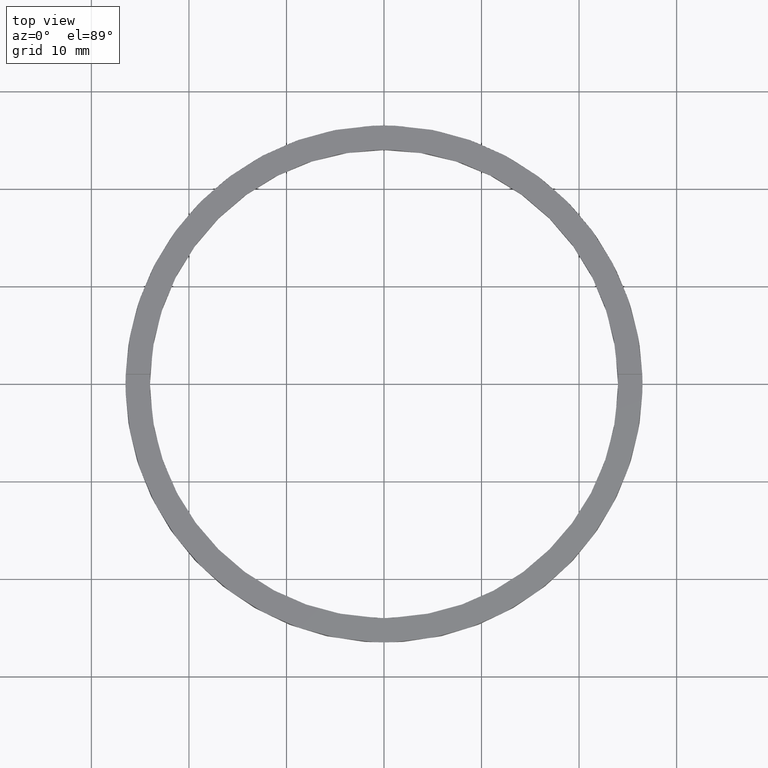
[diagram: clean part render]
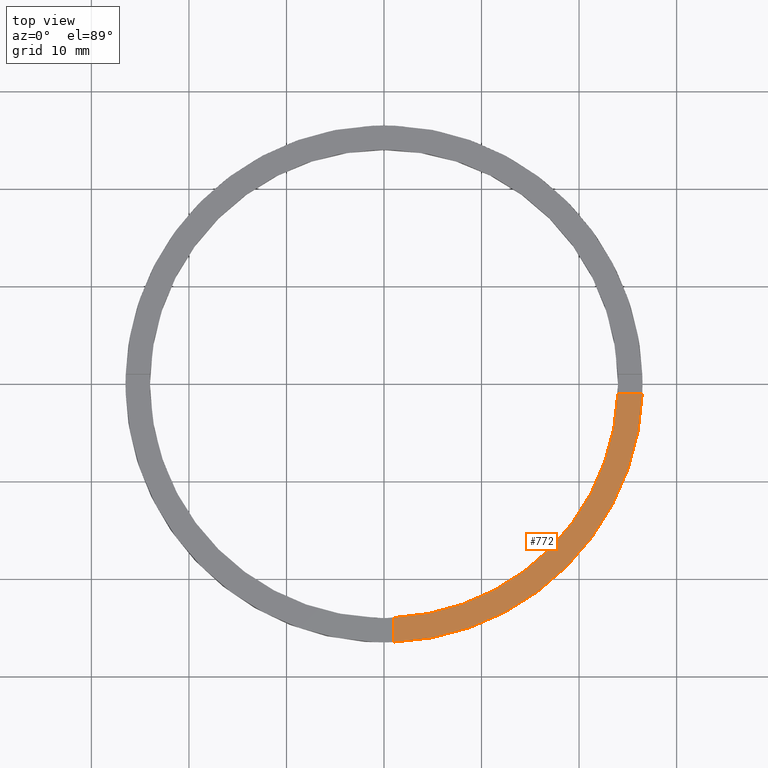
[diagram: same view with one face highlighted and labeled with its STEP entity id]
A machine part, top view. The second image highlights one B-rep face of the part: STEP entity #772.
In plain terms, the highlighted planar face has unit normal (0, 0, 1).
Its self-contained STEP definition (entity closure, byte-faithful):
#9 = DIRECTION ( 'NONE',  ( 1.000000000000000000, 4.336808689942017120E-17, 0.000000000000000000 ) ) ;
#24 = AXIS2_PLACEMENT_3D ( 'NONE', #158, #213, #151 ) ;
#25 = CARTESIAN_POINT ( 'NONE',  ( 0.9999999999998397948, -26.48112535373072873, 2.500000000000000000 ) ) ;
#32 = AXIS2_PLACEMENT_3D ( 'NONE', #747, #741, #204 ) ;
#44 = CARTESIAN_POINT ( 'NONE',  ( 0.000000000000000000, 0.000000000000000000, 2.500000000000000000 ) ) ;
#55 = CARTESIAN_POINT ( 'NONE',  ( 26.48112535373071807, -1.000000000000157208, 2.500000000000000000 ) ) ;
#66 = EDGE_LOOP ( 'NONE', ( #78, #619, #91, #312 ) ) ;
#78 = ORIENTED_EDGE ( 'NONE', *, *, #420, .F. ) ;
#83 = VERTEX_POINT ( 'NONE', #217 ) ;
#87 = VERTEX_POINT ( 'NONE', #25 ) ;
#91 = ORIENTED_EDGE ( 'NONE', *, *, #404, .F. ) ;
#130 = EDGE_CURVE ( 'NONE', #87, #375, #455, .T. ) ;
#151 = DIRECTION ( 'NONE',  ( 1.000000000000000000, 0.000000000000000000, 0.000000000000000000 ) ) ;
#158 = CARTESIAN_POINT ( 'NONE',  ( 0.000000000000000000, 0.000000000000000000, 2.500000000000000000 ) ) ;
#204 = DIRECTION ( 'NONE',  ( 1.000000000000000000, 0.000000000000000000, -0.000000000000000000 ) ) ;
#213 = DIRECTION ( 'NONE',  ( 0.000000000000000000, 0.000000000000000000, 1.000000000000000000 ) ) ;
#217 = CARTESIAN_POINT ( 'NONE',  ( 0.9999999999998393507, -23.97915761656361155, 2.500000000000000000 ) ) ;
#219 = CIRCLE ( 'NONE', #596, 24.00000000000000355 ) ;
#299 = DIRECTION ( 'NONE',  ( 1.000000000000000000, 0.000000000000000000, 0.000000000000000000 ) ) ;
#312 = ORIENTED_EDGE ( 'NONE', *, *, #130, .T. ) ;
#346 = VERTEX_POINT ( 'NONE', #631 ) ;
#375 = VERTEX_POINT ( 'NONE', #55 ) ;
#404 = EDGE_CURVE ( 'NONE', #87, #83, #701, .T. ) ;
#419 = CARTESIAN_POINT ( 'NONE',  ( 16.49999999999999645, -1.000000000000157652, 2.500000000000000000 ) ) ;
#420 = EDGE_CURVE ( 'NONE', #346, #375, #426, .T. ) ;
#426 = LINE ( 'NONE', #419, #693 ) ;
#435 = VECTOR ( 'NONE', #626, 1000.000000000000000 ) ;
#455 = CIRCLE ( 'NONE', #24, 26.50000000000000355 ) ;
#477 = FACE_OUTER_BOUND ( 'NONE', #66, .T. ) ;
#497 = CARTESIAN_POINT ( 'NONE',  ( 0.9999999999998384625, -16.50000000000018119, 2.500000000000000000 ) ) ;
#596 = AXIS2_PLACEMENT_3D ( 'NONE', #44, #632, #299 ) ;
#619 = ORIENTED_EDGE ( 'NONE', *, *, #761, .F. ) ;
#626 = DIRECTION ( 'NONE',  ( -1.301042606982605074E-16, 1.000000000000000000, -0.000000000000000000 ) ) ;
#631 = CARTESIAN_POINT ( 'NONE',  ( 23.97915761656359734, -1.000000000000157208, 2.500000000000000000 ) ) ;
#632 = DIRECTION ( 'NONE',  ( 0.000000000000000000, 0.000000000000000000, 1.000000000000000000 ) ) ;
#673 = PLANE ( 'NONE',  #32 ) ;
#693 = VECTOR ( 'NONE', #9, 1000.000000000000000 ) ;
#701 = LINE ( 'NONE', #497, #435 ) ;
#741 = DIRECTION ( 'NONE',  ( 0.000000000000000000, 0.000000000000000000, 1.000000000000000000 ) ) ;
#747 = CARTESIAN_POINT ( 'NONE',  ( 0.000000000000000000, 0.000000000000000000, 2.500000000000000000 ) ) ;
#761 = EDGE_CURVE ( 'NONE', #83, #346, #219, .T. ) ;
#772 = ADVANCED_FACE ( 'NONE', ( #477 ), #673, .T. ) ;